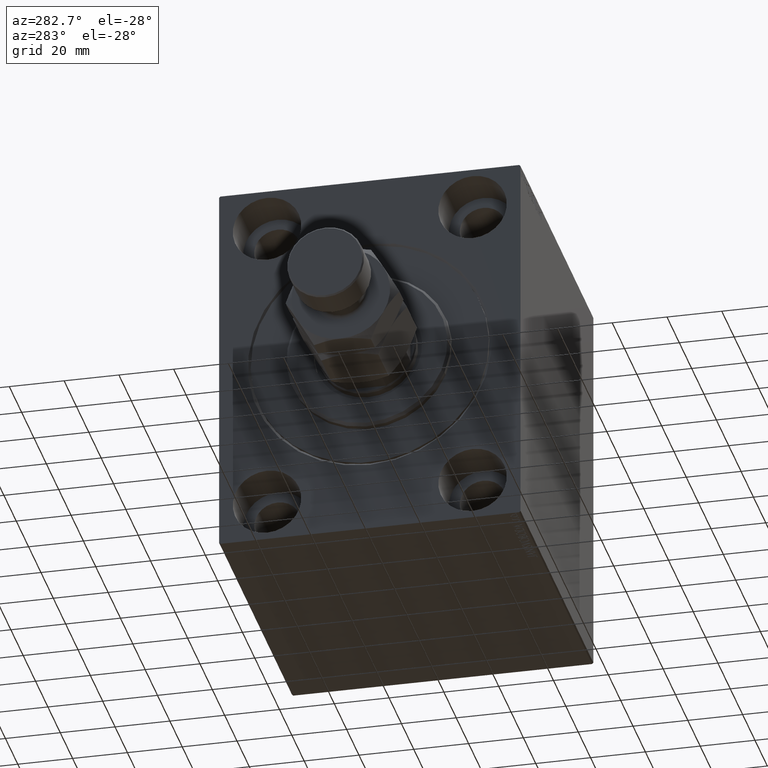
[diagram: clean part render]
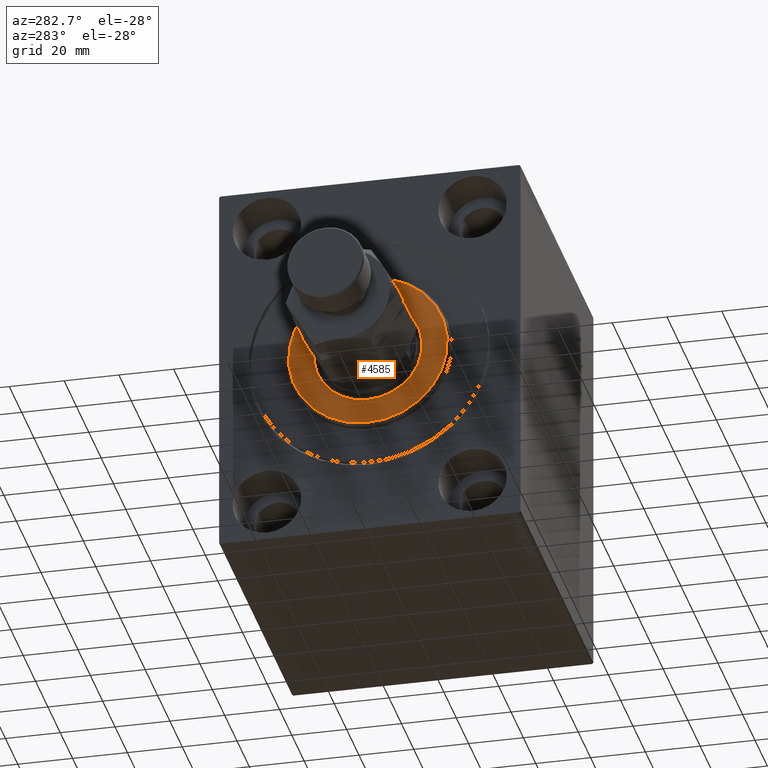
[diagram: same view with one face highlighted and labeled with its STEP entity id]
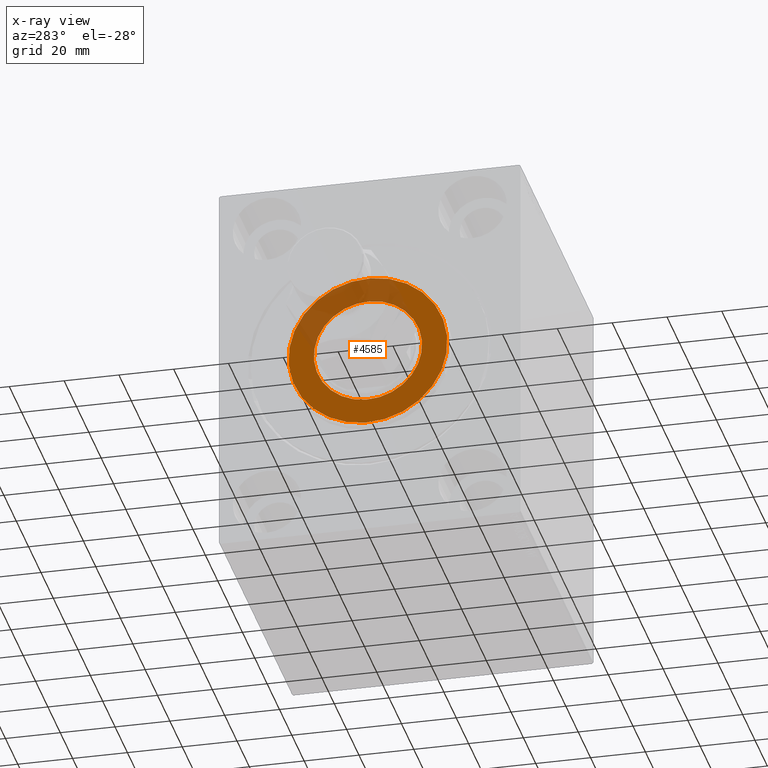
[diagram: x-ray of the same camera — body ghosted, the highlighted face saturated]
A machine part, auxiliary view. The second image highlights one B-rep face of the part: STEP entity #4585.
The next image is the same camera in x-ray: the body ghosted, the highlighted face saturated — about 28% of this face is hidden behind the body in this view.
In plain terms, the highlighted planar face has unit normal (-1, 0, 0).
Its self-contained STEP definition (entity closure, byte-faithful):
#445 = DIRECTION ( 'NONE',  ( 0.000000000000000000, 0.000000000000000000, -1.000000000000000000 ) ) ;
#2112 = CARTESIAN_POINT ( 'NONE',  ( 3.000000000000000000, 0.000000000000000000, 0.000000000000000000 ) ) ;
#3316 = CIRCLE ( 'NONE', #31256, 19.75000000000000000 ) ;
#3442 = CARTESIAN_POINT ( 'NONE',  ( 3.000000000000000000, 0.000000000000000000, 0.000000000000000000 ) ) ;
#4585 = ADVANCED_FACE ( 'NONE', ( #17915, #34982 ), #34530, .T. ) ;
#6738 = CIRCLE ( 'NONE', #25842, 29.00000000000002132 ) ;
#7026 = ORIENTED_EDGE ( 'NONE', *, *, #7721, .T. ) ;
#7338 = DIRECTION ( 'NONE',  ( 1.000000000000000000, -0.000000000000000000, 0.000000000000000000 ) ) ;
#7721 = EDGE_CURVE ( 'NONE', #35455, #18848, #39870, .T. ) ;
#7777 = CARTESIAN_POINT ( 'NONE',  ( 3.000000000000000000, 3.612708057484693181E-15, -29.00000000000002132 ) ) ;
#7783 = EDGE_CURVE ( 'NONE', #18848, #35455, #6738, .T. ) ;
#8567 = ORIENTED_EDGE ( 'NONE', *, *, #21096, .T. ) ;
#8868 = EDGE_CURVE ( 'NONE', #25551, #33873, #34720, .T. ) ;
#9935 = DIRECTION ( 'NONE',  ( -1.000000000000000000, 0.000000000000000000, -0.000000000000000000 ) ) ;
#16359 = DIRECTION ( 'NONE',  ( -1.000000000000000000, 0.000000000000000000, -0.000000000000000000 ) ) ;
#16577 = ORIENTED_EDGE ( 'NONE', *, *, #8868, .T. ) ;
#17115 = DIRECTION ( 'NONE',  ( 0.000000000000000000, 0.000000000000000000, -1.000000000000000000 ) ) ;
#17915 = FACE_OUTER_BOUND ( 'NONE', #20785, .T. ) ;
#18030 = CARTESIAN_POINT ( 'NONE',  ( 3.000000000000000000, 0.000000000000000000, 0.000000000000000000 ) ) ;
#18848 = VERTEX_POINT ( 'NONE', #38948 ) ;
#20356 = DIRECTION ( 'NONE',  ( 0.000000000000000000, 0.000000000000000000, -1.000000000000000000 ) ) ;
#20785 = EDGE_LOOP ( 'NONE', ( #30386, #7026 ) ) ;
#21096 = EDGE_CURVE ( 'NONE', #33873, #25551, #3316, .T. ) ;
#22835 = DIRECTION ( 'NONE',  ( 0.000000000000000000, 0.000000000000000000, -1.000000000000000000 ) ) ;
#23568 = AXIS2_PLACEMENT_3D ( 'NONE', #3442, #7338, #445 ) ;
#25088 = CARTESIAN_POINT ( 'NONE',  ( 3.000000000000000000, 2.418677428316022331E-15, -19.75000000000000000 ) ) ;
#25551 = VERTEX_POINT ( 'NONE', #25088 ) ;
#25747 = EDGE_LOOP ( 'NONE', ( #8567, #16577 ) ) ;
#25842 = AXIS2_PLACEMENT_3D ( 'NONE', #18030, #42245, #17115 ) ;
#26604 = AXIS2_PLACEMENT_3D ( 'NONE', #30291, #37202, #20356 ) ;
#29562 = AXIS2_PLACEMENT_3D ( 'NONE', #38054, #9935, #44069 ) ;
#30291 = CARTESIAN_POINT ( 'NONE',  ( 3.000000000000000000, 0.000000000000000000, 0.000000000000000000 ) ) ;
#30386 = ORIENTED_EDGE ( 'NONE', *, *, #7783, .T. ) ;
#31256 = AXIS2_PLACEMENT_3D ( 'NONE', #2112, #16359, #22835 ) ;
#33873 = VERTEX_POINT ( 'NONE', #44399 ) ;
#34530 = PLANE ( 'NONE',  #23568 ) ;
#34720 = CIRCLE ( 'NONE', #29562, 19.75000000000000000 ) ;
#34982 = FACE_BOUND ( 'NONE', #25747, .T. ) ;
#35455 = VERTEX_POINT ( 'NONE', #7777 ) ;
#37202 = DIRECTION ( 'NONE',  ( 1.000000000000000000, -0.000000000000000000, 0.000000000000000000 ) ) ;
#38054 = CARTESIAN_POINT ( 'NONE',  ( 3.000000000000000000, 0.000000000000000000, 0.000000000000000000 ) ) ;
#38948 = CARTESIAN_POINT ( 'NONE',  ( 3.000000000000000000, 0.000000000000000000, 29.00000000000002132 ) ) ;
#39870 = CIRCLE ( 'NONE', #26604, 29.00000000000002132 ) ;
#42245 = DIRECTION ( 'NONE',  ( 1.000000000000000000, -0.000000000000000000, 0.000000000000000000 ) ) ;
#44069 = DIRECTION ( 'NONE',  ( 0.000000000000000000, 0.000000000000000000, -1.000000000000000000 ) ) ;
#44399 = CARTESIAN_POINT ( 'NONE',  ( 3.000000000000000000, 0.000000000000000000, 19.75000000000000000 ) ) ;